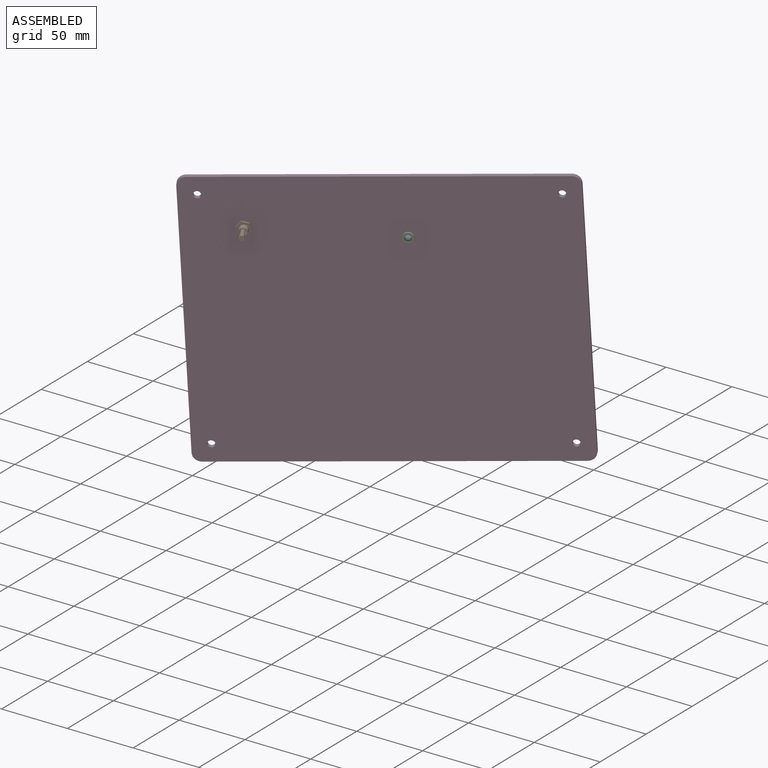
[diagram: assembled view]
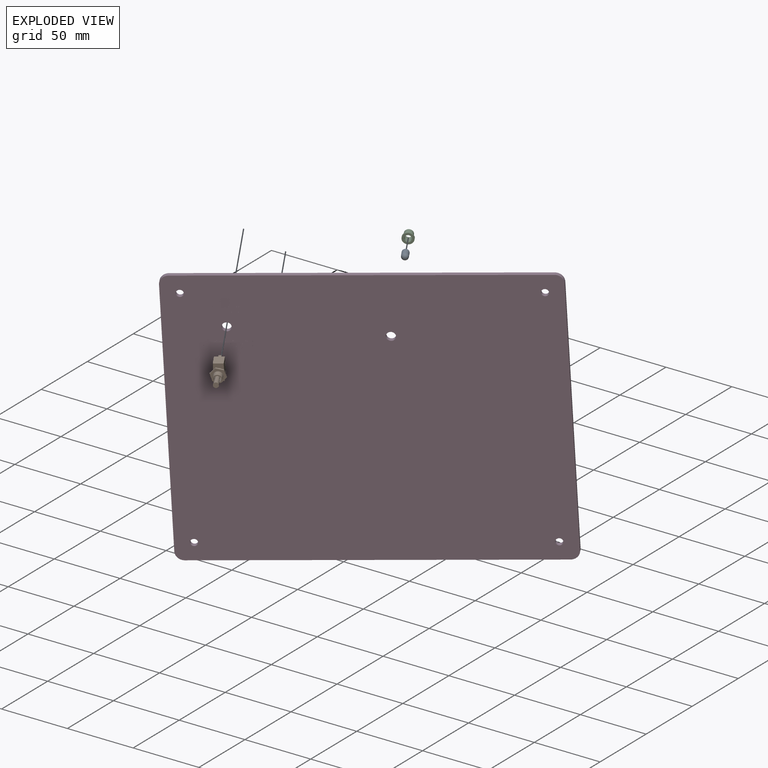
[diagram: exploded view]
GUIDED TOUR — MATED ASSEMBLY (Onshape document 11cc76b6e873f6705a067097, AutoMate assembly 11cc76b6e873f6705a067097_0fe16303fa36b0447fc38cfa_870a5784bba27549d0784133_default)

This assembly has 4 components, labeled P0..P3 below (a component is one placed occurrence of a part; the same part can appear more than once), held together by 3 mates. A mate is a constraint between two components; its type names the relative motion it leaves free:
  FASTENED — locks the two components together rigidly (no relative motion).
Axis/direction vectors are unit vectors and 'through' points are millimeter coordinates, both in the assembly's world frame.

MATES
  1. FASTENED "Fastened 1": P1 <-> P3, direction (-0.500, 0.863, 0.075) through (-8.96, -2.70, 73.06) mm
  2. FASTENED "Fastened 2": P2 <-> P0, direction (-0.500, 0.863, 0.075) through (77.27, 53.36, 70.91) mm
  3. FASTENED "Fastened 3": P2 <-> P3, direction (0.500, -0.863, -0.075) through (79.81, 48.97, 70.53) mm

ASSEMBLY ORDER
  1. P3 — the base component [order verified]
  2. P1 [order verified]
  3. P0 [order verified]
  4. P2 [order verified]
(P1, P2 verified with a relaxed clearance tolerance: the source model stores slight part interference there.)
Order-tag legend:
  [order verified] — this step's position reverses a verified removal order: the component was checked to insert without passing through the ones already placed.

Of the 4 components, 4 carry the full construction recipe — the FeatureScript program that regenerates the part's solid from scratch; the rest are supplied as boundary geometry only.
Each toured component is shown spotlighted twice — in the assembled view, then in the exploded view, where a leader line traces a displaced component back to its assembled socket (saturated green if recipe-attached, orange if geometry-only; every other component desaturated gray) — followed by its recipe or geometry summary and the mates that hold it.
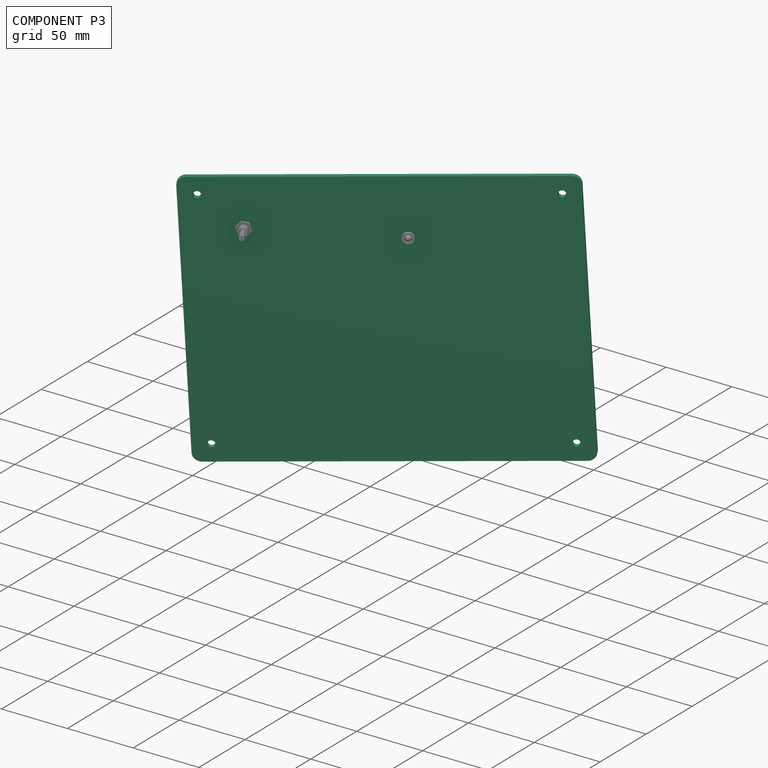
[diagram: component P3 — assembled]
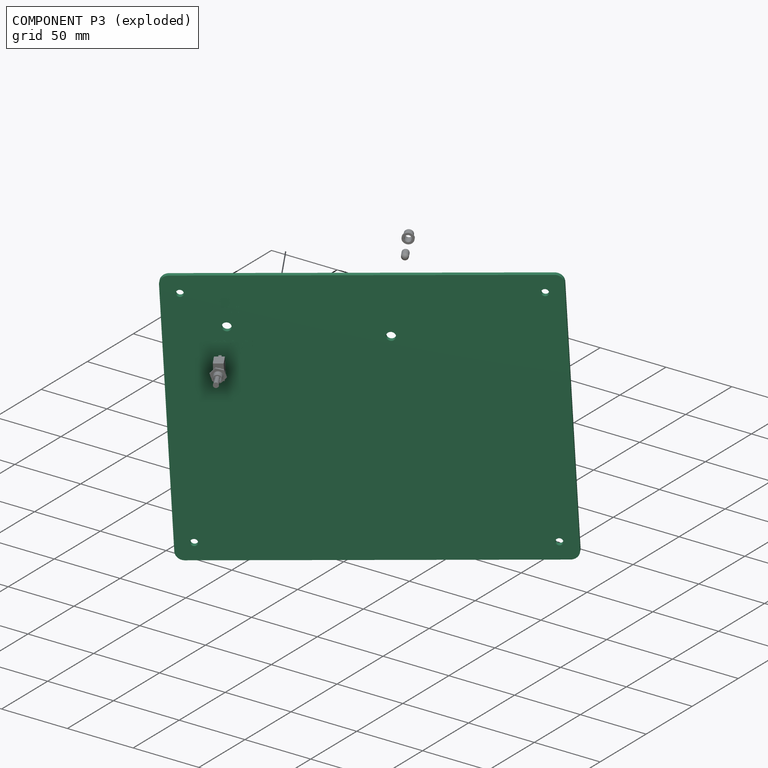
[diagram: component P3 — exploded]
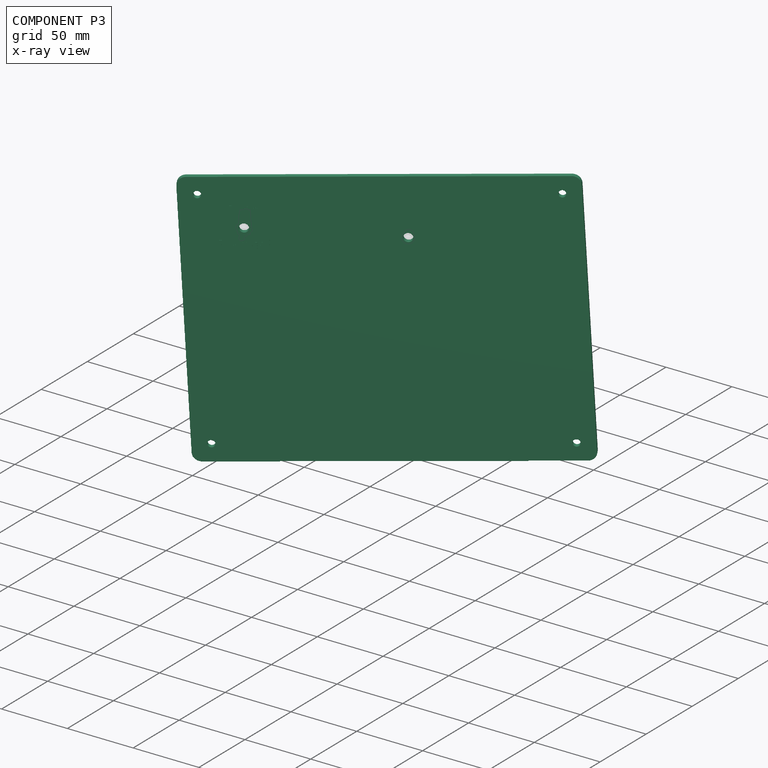
[diagram: component P3 — x-ray view]
COMPONENT P3 — recipe-attached (CADFS 00283833, mesh-verified: the recipe's output STEP matches this component's geometry to below the mesh-comparison resolution (tessellation chordal tolerance ~0.488 mm)).
Held by: FASTENED mate "Fastened 1" to P1; FASTENED mate "Fastened 3" to P2.
Construction recipe (FeatureScript — the CAD program that rebuilds this solid; sketch coordinates are in the units given by the * unit suffixes, e.g. mm):

FeatureScript 1511;
import(path : "onshape/std/geometry.fs", version : "1511.0");
import(path : "onshape/std/common.fs", version : "1511.0");
const mm = millimeter;
const VERTEX = EntityType.VERTEX;
const EDGE = EntityType.EDGE;
const FACE = EntityType.FACE;
const BODY = EntityType.BODY;
function v(x, y){return vector(x, y);}
function OD(order){return orderDisambiguation(order);}
function OSD(set){return originalSetDisambiguation(set);}
function TD(topology){return topologyDisambiguation(topology);}
function TDD(query){return trueDependencyDisambiguation(query);}
function sQuery(a, b, c) {return sketchEntityQuery(a, b, c);}

annotation { "Feature Type Name" : "Feature", "Feature Type Description" : "" }
export const myFeature = defineFeature(function(context is Context, id is Id, definition is map)
    precondition{}
    {
        {
            var Q0;
            Q0=qCreatedBy(makeId("Front.planeOp"),FACE);
            var sketch = newSketch(context, id + "F0", { "sketchPlane" : qUnion([Q0])});
            skLineSegment(sketch, "E0.bottom", {"start": v(127, 101.6) * mm, "end": v(-127, 101.6) * mm});
            skLineSegment(sketch, "E0.top", {"start": v(127, -101.6) * mm, "end": v(-127, -101.6) * mm});
            skLineSegment(sketch, "E0.left", {"start": v(127, 101.6) * mm, "end": v(127, -101.6) * mm});
            skLineSegment(sketch, "E0.right", {"start": v(-127, 101.6) * mm, "end": v(-127, -101.6) * mm});
            skPoint(sketch, "E0.middle", {"position": v(0, 0) * mm});
            skLineSegment(sketch, "E1.bottom", {"start": v(-114.3, 88.9) * mm, "end": v(114.3, 88.9) * mm, "construction": true});
            skLineSegment(sketch, "E1.top", {"start": v(-114.3, -88.9) * mm, "end": v(114.3, -88.9) * mm, "construction": true});
            skLineSegment(sketch, "E1.left", {"start": v(-114.3, 88.9) * mm, "end": v(-114.3, -88.9) * mm, "construction": true});
            skLineSegment(sketch, "E1.right", {"start": v(114.3, 88.9) * mm, "end": v(114.3, -88.9) * mm, "construction": true});
            skCircle(sketch, "E2", {"center": v(-114.3, 88.9) * mm, "radius": 2.54 * mm});
            skCircle(sketch, "E3", {"center": v(114.3, 88.9) * mm, "radius": 2.54 * mm});
            skCircle(sketch, "E4", {"center": v(114.3, -88.9) * mm, "radius": 2.54 * mm});
            skCircle(sketch, "E5", {"center": v(-114.3, -88.9) * mm, "radius": 2.54 * mm});
            skSolve(sketch);
        }
        {
            var Q0;
            Q0 = qSketchRegion(id + "F0", true);
            extrude(context, id + "F1", {"entities" : qUnion([Q0]), "depth" : 3.17 * mm});
        }
        {
            var Q0;
            Q0=makeQuery(id+"F1.opExtrude","SWEPT_EDGE",EDGE,{"disambiguationData":[OSD([sQuery(id+"F0.wireOp",EDGE,"E0.top"),sQuery(id+"F0.wireOp",EDGE,"E0.right")])]});
            var Q1;
            Q1=makeQuery(id+"F1.opExtrude","SWEPT_EDGE",EDGE,{"disambiguationData":[OSD([sQuery(id+"F0.wireOp",EDGE,"E0.top"),sQuery(id+"F0.wireOp",EDGE,"E0.left")])]});
            var Q2;
            Q2=makeQuery(id+"F1.opExtrude","SWEPT_EDGE",EDGE,{"disambiguationData":[OSD([sQuery(id+"F0.wireOp",EDGE,"E0.bottom"),sQuery(id+"F0.wireOp",EDGE,"E0.left")])]});
            var Q3;
            Q3=makeQuery(id+"F1.opExtrude","SWEPT_EDGE",EDGE,{"disambiguationData":[OSD([sQuery(id+"F0.wireOp",EDGE,"E0.bottom"),sQuery(id+"F0.wireOp",EDGE,"E0.right")])]});
            fillet(context, id + "F2", {"entities" : qUnion([Q0, Q1, Q2, Q3]), "radius" : 6.35 * mm, "tangentPropagation" : true, "allowEdgeOverflow" : false});
        }
        {
            var Q0;
            Q0=makeQuery(id+"F1.opExtrude","CAP_FACE",FACE,{"disambiguationData":[OSD([sQuery(id+"F0.wireOp",EDGE,"E0.bottom"),sQuery(id+"F0.wireOp",EDGE,"E0.top"),sQuery(id+"F0.wireOp",EDGE,"E0.left"),sQuery(id+"F0.wireOp",EDGE,"E0.right"),sQuery(id+"F0.wireOp",EDGE,"E2"),sQuery(id+"F0.wireOp",EDGE,"E3"),sQuery(id+"F0.wireOp",EDGE,"E4"),sQuery(id+"F0.wireOp",EDGE,"E5")])],"isStart":false});
            var sketch = newSketch(context, id + "F3", { "sketchPlane" : qUnion([Q0])});
            skCircle(sketch, "E6", {"center": v(-86.18, 64.96) * mm, "radius": 3.18 * mm});
            skCircle(sketch, "E7", {"center": v(16.32, 57.93) * mm, "radius": 3.18 * mm});
            skSolve(sketch);
        }
        {
            var Q0;
            Q0 = qSketchRegion(id + "F3", true);
            extrude(context, id + "F4", {"entities" : qUnion([Q0]), "operationType" : NewBodyOperationType.REMOVE, "endBound" : BoundingType.UP_TO_NEXT, "oppositeDirection" : true, "depth" : 25.4 * mm});
        }
        {
            var Q0;
            Q0=makeQuery(id+"F1.opExtrude","CAP_FACE",FACE,{"disambiguationData":[OSD([sQuery(id+"F0.wireOp",EDGE,"E0.bottom"),sQuery(id+"F0.wireOp",EDGE,"E0.top"),sQuery(id+"F0.wireOp",EDGE,"E0.left"),sQuery(id+"F0.wireOp",EDGE,"E0.right"),sQuery(id+"F0.wireOp",EDGE,"E2"),sQuery(id+"F0.wireOp",EDGE,"E3"),sQuery(id+"F0.wireOp",EDGE,"E4"),sQuery(id+"F0.wireOp",EDGE,"E5")])],"isStart":false});
            var sketch = newSketch(context, id + "F5", { "sketchPlane" : qUnion([Q0])});
            skText(sketch, "E8", { "text": "Auto", "fontName": "OpenSans-Bold.ttf"});
            skText(sketch, "E9", { "text": "Manual", "fontName": "OpenSans-Bold.ttf"});
            const initialGuessF5  = {"E8": [-0.09705, 0.07449, 1, 0, 0.00635], "E9": [-0.10304, 0.05008, 1, 0, 0.00635]};
            skSetInitialGuess(sketch, initialGuessF5);
            skSolve(sketch);
        }
        {
            var Q0;
            Q0 = qSketchRegion(id + "F5", true);
            extrude(context, id + "F6", {"entities" : qUnion([Q0]), "operationType" : NewBodyOperationType.ADD, "depth" : 0.03 * mm});
        }
    });
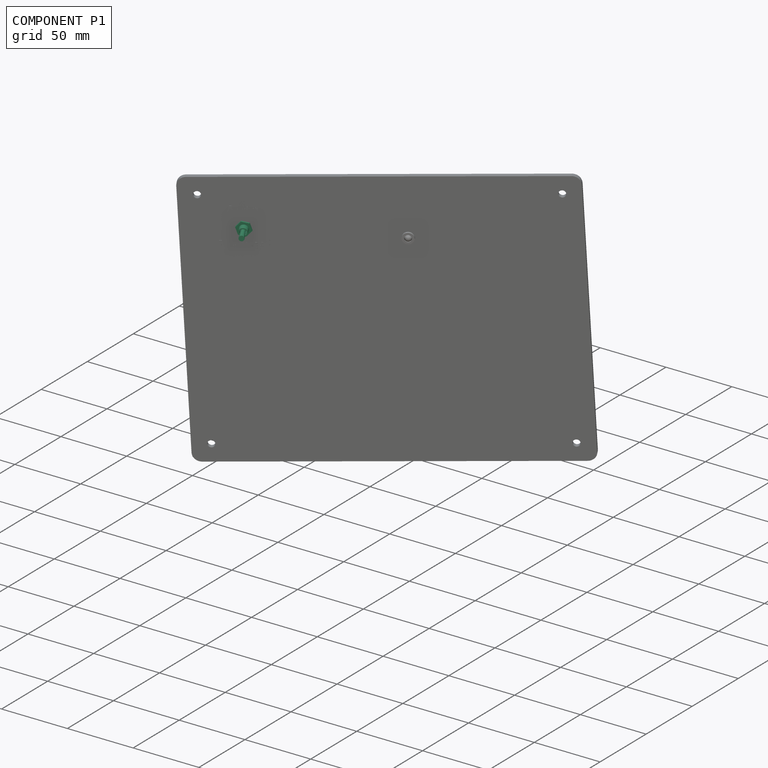
[diagram: component P1 — assembled]
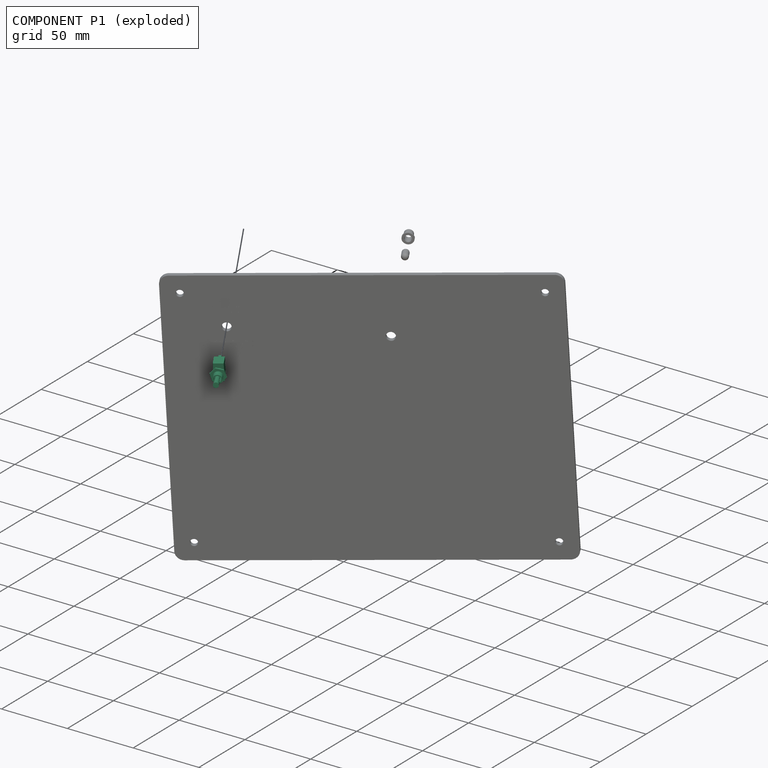
[diagram: component P1 — exploded]
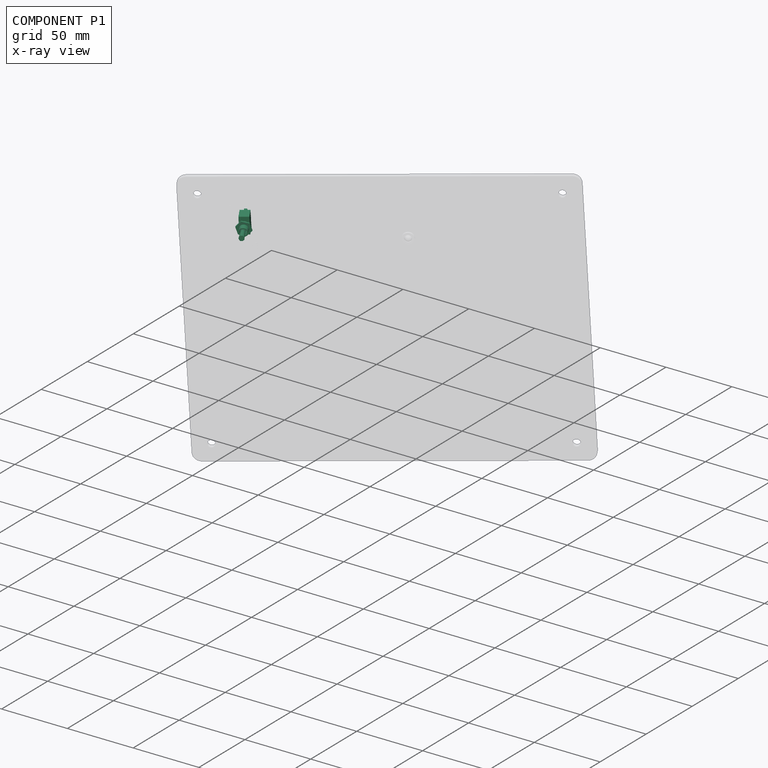
[diagram: component P1 — x-ray view]
COMPONENT P1 — recipe-attached (CADFS 00283834, mesh-verified: the recipe's output STEP matches this component's geometry to below the mesh-comparison resolution (tessellation chordal tolerance ~0.0547 mm)).
Held by: FASTENED mate "Fastened 1" to P3.
Construction recipe (FeatureScript — the CAD program that rebuilds this solid; sketch coordinates are in the units given by the * unit suffixes, e.g. mm):

FeatureScript 1511;
import(path : "onshape/std/geometry.fs", version : "1511.0");
import(path : "onshape/std/common.fs", version : "1511.0");
const mm = millimeter;
const VERTEX = EntityType.VERTEX;
const EDGE = EntityType.EDGE;
const FACE = EntityType.FACE;
const BODY = EntityType.BODY;
function v(x, y){return vector(x, y);}
function OD(order){return orderDisambiguation(order);}
function OSD(set){return originalSetDisambiguation(set);}
function TD(topology){return topologyDisambiguation(topology);}
function TDD(query){return trueDependencyDisambiguation(query);}
function sQuery(a, b, c) {return sketchEntityQuery(a, b, c);}

annotation { "Feature Type Name" : "Feature", "Feature Type Description" : "" }
export const myFeature = defineFeature(function(context is Context, id is Id, definition is map)
    precondition{}
    {
        {
            var Q0;
            Q0=qCreatedBy(makeId("Top.planeOp"),FACE);
            var sketch = newSketch(context, id + "F0", { "sketchPlane" : qUnion([Q0])});
            skCircle(sketch, "E0", {"center": v(0, 0) * mm, "radius": 3.18 * mm});
            skCircle(sketch, "E1", {"center": v(0, 0) * mm, "radius": 2.37 * mm});
            skSolve(sketch);
        }
        {
            var Q0;
            Q0=makeQuery(id+"F0.imprint","IMPRINT",FACE,{"disambiguationData":[TD([[makeQuery(id+"F0.imprint","IMPRINT",EDGE,{"derivedFrom":sQuery(id+"F0.wireOp",EDGE,"E0")}),1.0]])]});
            extrude(context, id + "F1", {"entities" : qUnion([Q0]), "depth" : 8.9 * mm});
        }
        {
            var Q0;
            Q0=makeQuery(id+"F1.opExtrude","CAP_FACE",FACE,{"disambiguationData":[OSD([sQuery(id+"F0.wireOp",EDGE,"E0"),sQuery(id+"F0.wireOp",EDGE,"E1")])],"isStart":true});
            var sketch = newSketch(context, id + "F2", { "sketchPlane" : qUnion([Q0])});
            skLineSegment(sketch, "E2.bottom", {"start": v(6.35, -3.43) * mm, "end": v(-6.35, -3.43) * mm});
            skLineSegment(sketch, "E2.top", {"start": v(6.35, 3.43) * mm, "end": v(-6.35, 3.43) * mm});
            skLineSegment(sketch, "E2.left", {"start": v(6.35, -3.43) * mm, "end": v(6.35, 3.43) * mm});
            skLineSegment(sketch, "E2.right", {"start": v(-6.35, -3.43) * mm, "end": v(-6.35, 3.43) * mm});
            skPoint(sketch, "E2.middle", {"position": v(0, 0) * mm});
            skSolve(sketch);
        }
        {
            var Q0;
            Q0 = qSketchRegion(id + "F2", true);
            extrude(context, id + "F3", {"entities" : qUnion([Q0]), "operationType" : NewBodyOperationType.ADD, "depth" : 8.9 * mm});
        }
        {
            var Q0;
            Q0=makeQuery(id+"F3.opExtrude","CAP_FACE",FACE,{"disambiguationData":[OSD([sQuery(id+"F2.wireOp",EDGE,"E2.bottom"),sQuery(id+"F2.wireOp",EDGE,"E2.top"),sQuery(id+"F2.wireOp",EDGE,"E2.left"),sQuery(id+"F2.wireOp",EDGE,"E2.right")])],"isStart":false});
            var sketch = newSketch(context, id + "F4", { "sketchPlane" : qUnion([Q0])});
            skLineSegment(sketch, "E3.bottom", {"start": v(-4.32, 1.02) * mm, "end": v(-5.08, 1.02) * mm});
            skLineSegment(sketch, "E3.top", {"start": v(-4.32, -1.02) * mm, "end": v(-5.08, -1.02) * mm});
            skLineSegment(sketch, "E3.left", {"start": v(-4.32, 1.02) * mm, "end": v(-4.32, -1.02) * mm});
            skLineSegment(sketch, "E3.right", {"start": v(-5.08, 1.02) * mm, "end": v(-5.08, -1.02) * mm});
            skPoint(sketch, "E3.middle", {"position": v(0, 0) * mm});
            skPoint(sketch, "E3.middle.positionSnap0", {"position": v(-6.35, 0) * mm});
            skPoint(sketch, "E3.middle.positionSnap1", {"position": v(0, 3.43) * mm});
            skPoint(sketch, "E3.centerSnap0", {"position": v(-6.35, 0) * mm});
            skPoint(sketch, "E3.centerSnap1", {"position": v(0, 3.43) * mm});
            skLineSegment(sketch, "E4.1.0.0", {"start": v(-0.38, 1.02) * mm, "end": v(-0.38, -1.02) * mm});
            skLineSegment(sketch, "E4.1.0.1", {"start": v(0.38, 1.02) * mm, "end": v(0.38, -1.02) * mm});
            skLineSegment(sketch, "E4.1.0.2", {"start": v(0.38, -1.02) * mm, "end": v(-0.38, -1.02) * mm});
            skLineSegment(sketch, "E4.1.0.3", {"start": v(0.38, 1.02) * mm, "end": v(-0.38, 1.02) * mm});
            skPoint(sketch, "E4.1.0.4", {"position": v(4.7, 0) * mm});
            skLineSegment(sketch, "E4.2.0.0", {"start": v(4.32, 1.02) * mm, "end": v(4.32, -1.02) * mm});
            skLineSegment(sketch, "E4.2.0.1", {"start": v(5.08, 1.02) * mm, "end": v(5.08, -1.02) * mm});
            skLineSegment(sketch, "E4.2.0.2", {"start": v(5.08, -1.02) * mm, "end": v(4.32, -1.02) * mm});
            skLineSegment(sketch, "E4.2.0.3", {"start": v(5.08, 1.02) * mm, "end": v(4.32, 1.02) * mm});
            skPoint(sketch, "E4.2.0.4", {"position": v(9.4, 0) * mm});
            skLineSegment(sketch, "E4.direction1", {"start": v(-5.08, -1.02) * mm, "end": v(-0.38, -1.02) * mm, "construction": true});
            skLineSegment(sketch, "E5", {"start": v(0, 3.43) * mm, "end": v(0, 1.02) * mm, "construction": true});
            skLineSegment(sketch, "E6", {"start": v(0, -3.43) * mm, "end": v(0, -1.02) * mm, "construction": true});
            skSolve(sketch);
        }
        {
            var Q0;
            Q0 = qSketchRegion(id + "F4", true);
            extrude(context, id + "F5", {"entities" : qUnion([Q0]), "operationType" : NewBodyOperationType.ADD, "depth" : 3.94 * mm});
        }
        {
            var Q0;
            {var subQ0=sQuery(id+"F2.wireOp",EDGE,"E2.left");var subQ1=sQuery(id+"F2.wireOp",EDGE,"E2.top");var subQ2=sQuery(id+"F2.wireOp",EDGE,"E2.bottom");var subQ3=sQuery(id+"F2.wireOp",EDGE,"E2.right");Q0=makeQuery(id+"F3.boolean.opBoolean","SPLIT",FACE,{"disambiguationData":[TD([makeQuery(id+"F1.opExtrude","SWEPT_FACE",FACE,{"disambiguationData":[OSD([sQuery(id+"F0.wireOp",EDGE,"E0")])]})])],"derivedFrom":makeQuery(id+"F3.opExtrude","CAP_FACE",FACE,{"disambiguationData":[OSD([subQ2,subQ1,subQ0,subQ3])],"isStart":true})});}
            cPlane(context, id + "F6", {"entities" : qUnion([Q0]), "cplaneType" : CPlaneType.OFFSET, "offset" : 3.17 * mm, "width" : 152.4 * mm, "height" : 152.4 * mm});
        }
        {
            var Q0;
            Q0=qCreatedBy(id+"F6.planeOp",FACE);
            var sketch = newSketch(context, id + "F7", { "sketchPlane" : qUnion([Q0])});
            skCircle(sketch, "E7.cCircle", {"center": v(0, 0) * mm, "radius": 4.76 * mm, "construction": true});
            skLineSegment(sketch, "E7.0", {"start": v(-1.37, -5.33) * mm, "end": v(-5.3, -1.48) * mm});
            skLineSegment(sketch, "E7.1", {"start": v(-5.3, -1.48) * mm, "end": v(-3.93, 3.85) * mm});
            skLineSegment(sketch, "E7.2", {"start": v(-3.93, 3.85) * mm, "end": v(1.37, 5.33) * mm});
            skLineSegment(sketch, "E7.3", {"start": v(1.37, 5.33) * mm, "end": v(5.3, 1.48) * mm});
            skLineSegment(sketch, "E7.4", {"start": v(5.3, 1.48) * mm, "end": v(3.93, -3.85) * mm});
            skLineSegment(sketch, "E7.5", {"start": v(3.93, -3.85) * mm, "end": v(-1.37, -5.33) * mm});
            skPoint(sketch, "E7.0.midPoint", {"position": v(-3.33, -3.4) * mm});
            skCircle(sketch, "E8", {"center": v(0, 0) * mm, "radius": 3.18 * mm});
            skSolve(sketch);
        }
        {
            var Q0;
            Q0 = qSketchRegion(id + "F7", true);
            extrude(context, id + "F8", {"entities" : qUnion([Q0]), "operationType" : NewBodyOperationType.ADD, "depth" : 1.17 * mm});
        }
        {
            var Q0;
            {var subQ0=sQuery(id+"F2.wireOp",EDGE,"E2.left");var subQ1=sQuery(id+"F2.wireOp",EDGE,"E2.top");var subQ2=sQuery(id+"F2.wireOp",EDGE,"E2.bottom");var subQ3=sQuery(id+"F2.wireOp",EDGE,"E2.right");Q0=makeQuery(id+"F3.boolean.opBoolean","SPLIT",FACE,{"disambiguationData":[TD([makeQuery(id+"F1.opExtrude","SWEPT_FACE",FACE,{"disambiguationData":[OSD([sQuery(id+"F0.wireOp",EDGE,"E0")])]})])],"derivedFrom":makeQuery(id+"F3.opExtrude","CAP_FACE",FACE,{"disambiguationData":[OSD([subQ2,subQ1,subQ0,subQ3])],"isStart":true})});}
            var sketch = newSketch(context, id + "F9", { "sketchPlane" : qUnion([Q0])});
            skLineSegment(sketch, "E9", {"start": v(0, 3.43) * mm, "end": v(0, -3.43) * mm, "construction": true});
            skSolve(sketch);
        }
        {
            var Q0;
            Q0=sQuery(id+"F9.wireOp",EDGE,"E9");
            cPlane(context, id + "F10", {"entities" : qUnion([Q0]), "cplaneType" : CPlaneType.LINE_ANGLE, "offset" : 25.4 * mm, "angle" : 5 * degree, "oppositeDirection" : true, "width" : 152.4 * mm, "height" : 152.4 * mm});
        }
        {
            var Q0;
            Q0=qCreatedBy(id+"F10.planeOp",FACE);
            var sketch = newSketch(context, id + "F11", { "sketchPlane" : qUnion([Q0])});
            skCircle(sketch, "E10", {"center": v(0, 0) * mm, "radius": 1.22 * mm});
            skSolve(sketch);
        }
        {
            var Q0;
            Q0 = qSketchRegion(id + "F11", true);
            extrude(context, id + "F12", {"entities" : qUnion([Q0]), "operationType" : NewBodyOperationType.ADD, "oppositeDirection" : true, "depth" : 19.56 * mm, "hasDraft" : true, "draftAngle" : 2 * degree});
        }
    });
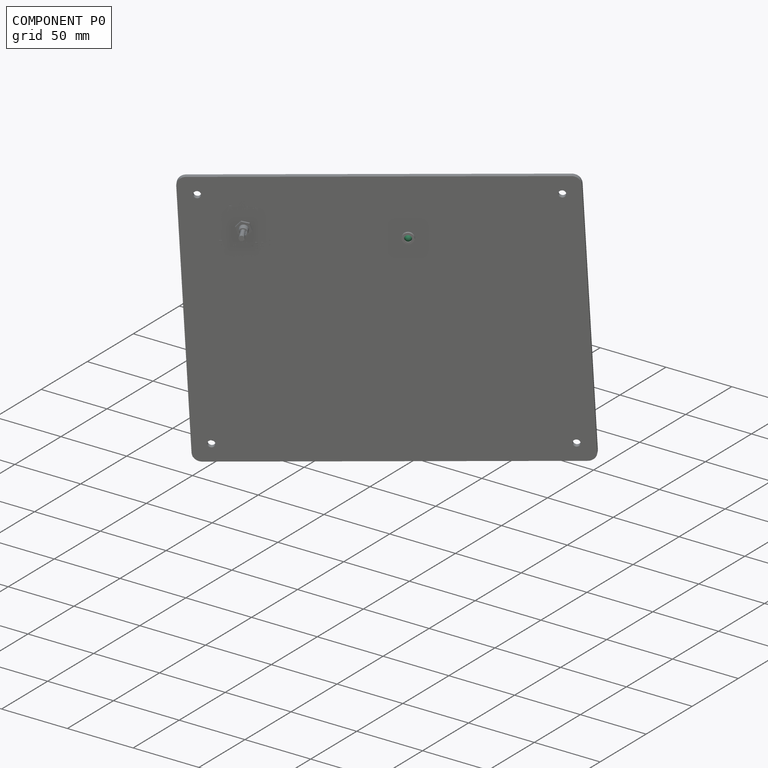
[diagram: component P0 — assembled]
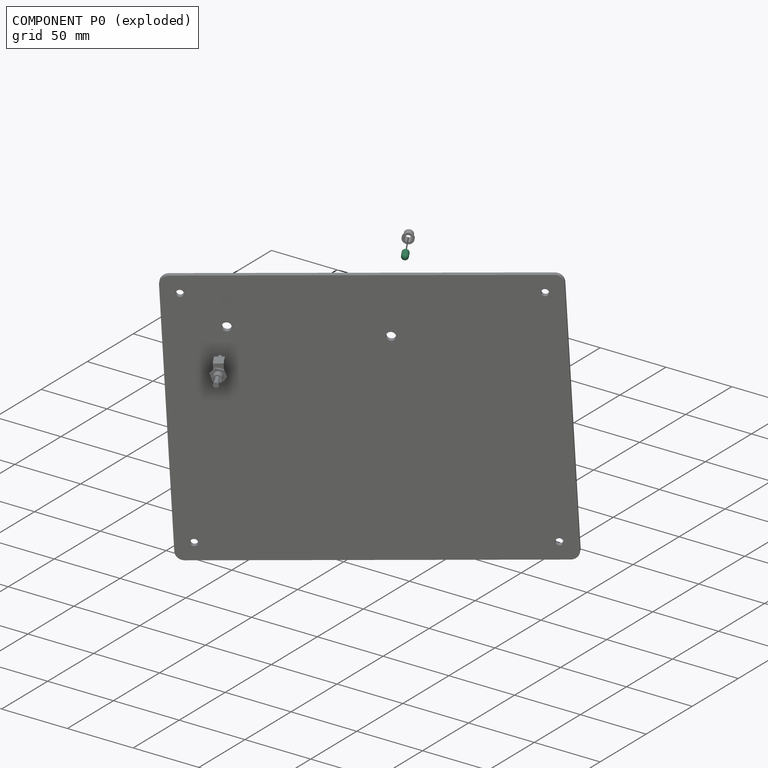
[diagram: component P0 — exploded]
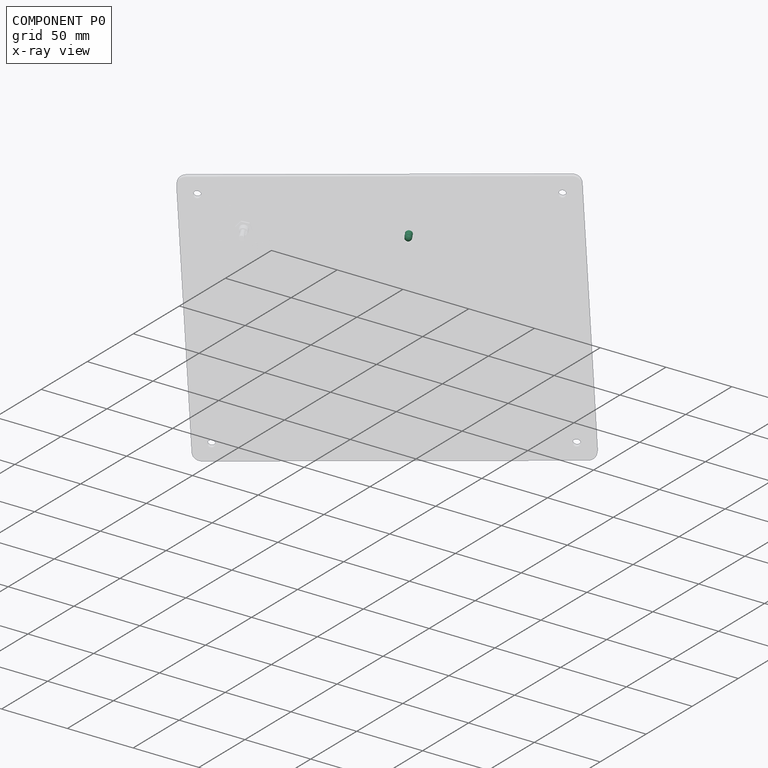
[diagram: component P0 — x-ray view]
COMPONENT P0 — recipe-attached (CADFS 00283836, mesh-verified: the recipe's output STEP matches this component's geometry to below the mesh-comparison resolution (tessellation chordal tolerance ~0.0155 mm)).
Held by: FASTENED mate "Fastened 2" to P2.
Construction recipe (FeatureScript — the CAD program that rebuilds this solid; sketch coordinates are in the units given by the * unit suffixes, e.g. mm):

FeatureScript 1511;
import(path : "onshape/std/geometry.fs", version : "1511.0");
import(path : "onshape/std/common.fs", version : "1511.0");
const mm = millimeter;
const VERTEX = EntityType.VERTEX;
const EDGE = EntityType.EDGE;
const FACE = EntityType.FACE;
const BODY = EntityType.BODY;
function v(x, y){return vector(x, y);}
function OD(order){return orderDisambiguation(order);}
function OSD(set){return originalSetDisambiguation(set);}
function TD(topology){return topologyDisambiguation(topology);}
function TDD(query){return trueDependencyDisambiguation(query);}
function sQuery(a, b, c) {return sketchEntityQuery(a, b, c);}

annotation { "Feature Type Name" : "Feature", "Feature Type Description" : "" }
export const myFeature = defineFeature(function(context is Context, id is Id, definition is map)
    precondition{}
    {
        {
            var Q0;
            Q0=qCreatedBy(makeId("Front.planeOp"),FACE);
            var sketch = newSketch(context, id + "F0", { "sketchPlane" : qUnion([Q0])});
            skLineSegment(sketch, "E0", {"start": v(0, 0) * mm, "end": v(-2.5, 0) * mm});
            skLineSegment(sketch, "E1", {"start": v(-2.5, 0) * mm, "end": v(-2.5, 5.08) * mm});
            skArc(sketch, "E2", {"start": v(-2.5, 5.08) * mm, "mid": v(-1.77, 6.85) * mm, "end": v(0, 7.58) * mm});
            skLineSegment(sketch, "E3", {"start": v(0, 7.58) * mm, "end": v(0, 0) * mm});
            skSolve(sketch);
        }
        {
            var Q0;
            Q0=makeQuery(id+"F0.imprint","IMPRINT",FACE,{"disambiguationData":[TD([[makeQuery(id+"F0.imprint","IMPRINT",EDGE,{"derivedFrom":sQuery(id+"F0.wireOp",EDGE,"E0")}),-1.0]])]});
            var Q1;
            Q1=sQuery(id+"F0.wireOp",EDGE,"E3");
            revolve(context, id + "F1", {"entities" : qUnion([Q0]), "axis" : qUnion([Q1]), "revolveType" : RevolveType.FULL});
        }
    });
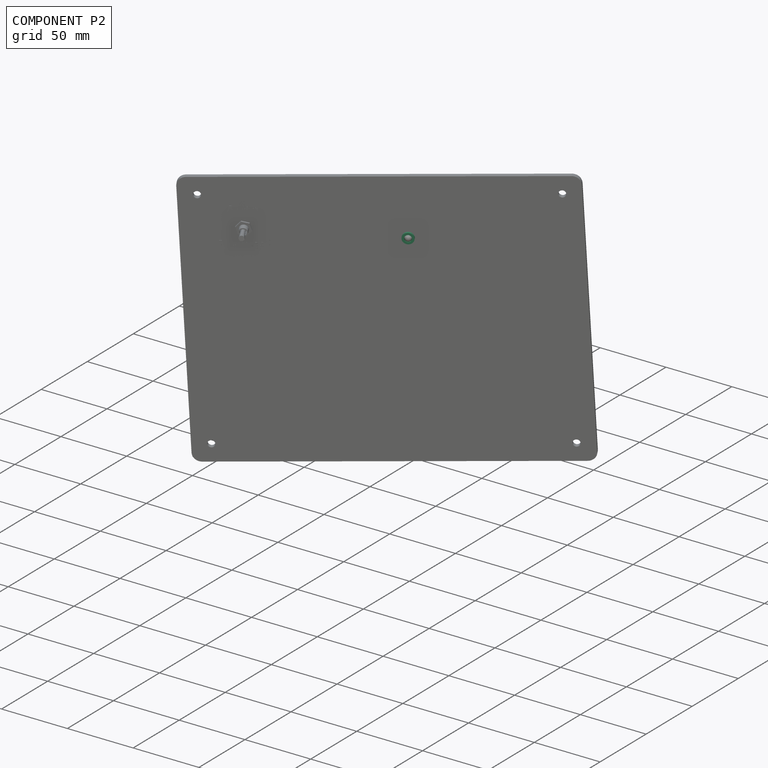
[diagram: component P2 — assembled]
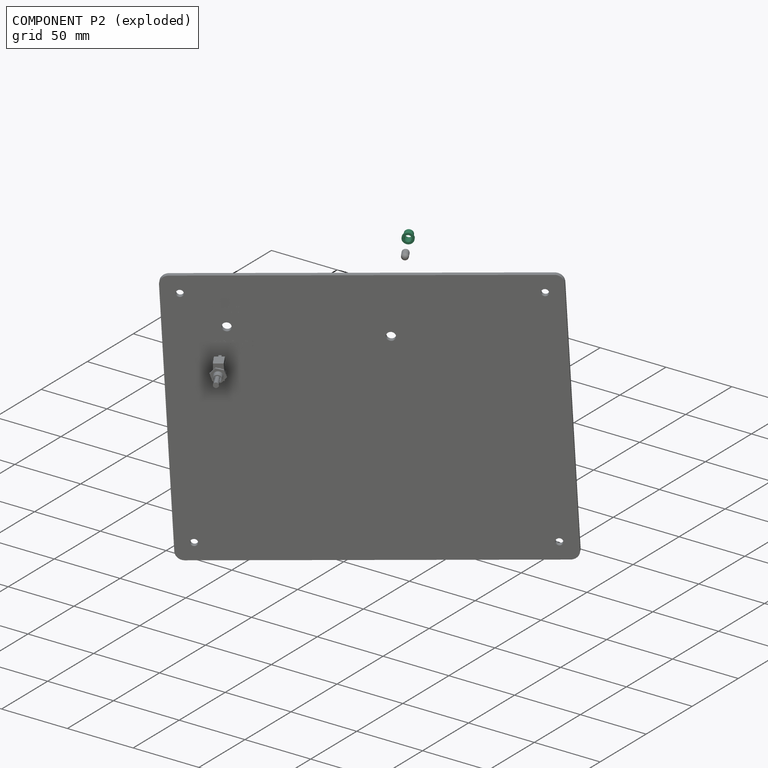
[diagram: component P2 — exploded]
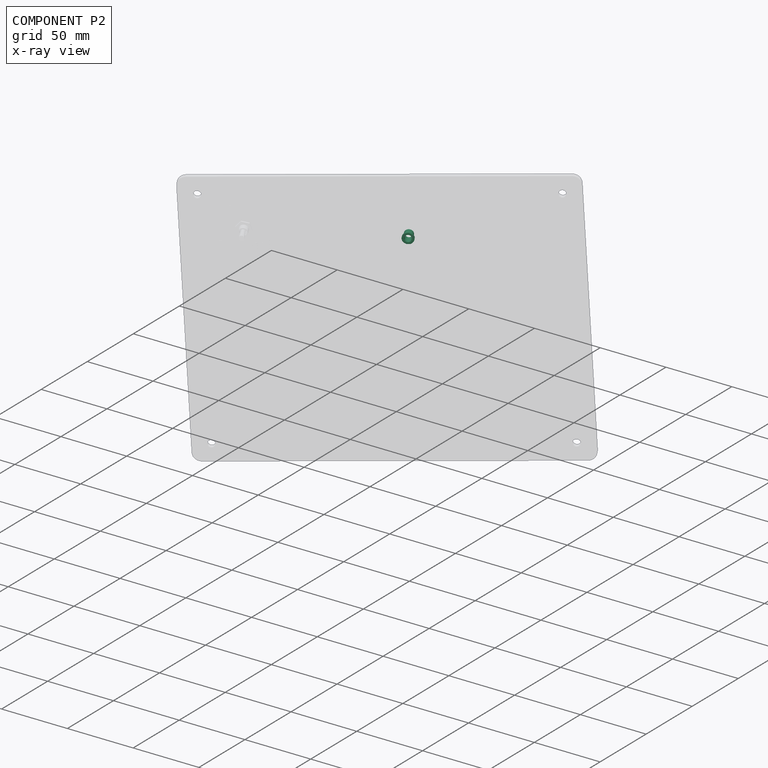
[diagram: component P2 — x-ray view]
COMPONENT P2 — recipe-attached (CADFS 00283835, mesh-verified: the recipe's output STEP matches this component's geometry to below the mesh-comparison resolution (tessellation chordal tolerance ~0.0199 mm)).
Held by: FASTENED mate "Fastened 2" to P0; FASTENED mate "Fastened 3" to P3.
Construction recipe (FeatureScript — the CAD program that rebuilds this solid; sketch coordinates are in the units given by the * unit suffixes, e.g. mm):

FeatureScript 1511;
import(path : "onshape/std/geometry.fs", version : "1511.0");
import(path : "onshape/std/common.fs", version : "1511.0");
const mm = millimeter;
const VERTEX = EntityType.VERTEX;
const EDGE = EntityType.EDGE;
const FACE = EntityType.FACE;
const BODY = EntityType.BODY;
function v(x, y){return vector(x, y);}
function OD(order){return orderDisambiguation(order);}
function OSD(set){return originalSetDisambiguation(set);}
function TD(topology){return topologyDisambiguation(topology);}
function TDD(query){return trueDependencyDisambiguation(query);}
function sQuery(a, b, c) {return sketchEntityQuery(a, b, c);}

annotation { "Feature Type Name" : "Feature", "Feature Type Description" : "" }
export const myFeature = defineFeature(function(context is Context, id is Id, definition is map)
    precondition{}
    {
        {
            var Q0;
            Q0=qCreatedBy(makeId("Top.planeOp"),FACE);
            var sketch = newSketch(context, id + "F0", { "sketchPlane" : qUnion([Q0])});
            skCircle(sketch, "E0", {"center": v(0, 0) * mm, "radius": 2.5 * mm});
            skCircle(sketch, "E1", {"center": v(0, 0) * mm, "radius": 4.11 * mm});
            skSolve(sketch);
        }
        {
            var Q0;
            Q0 = qSketchRegion(id + "F0", true);
            extrude(context, id + "F1", {"entities" : qUnion([Q0]), "depth" : 1.27 * mm});
        }
        {
            var Q0;
            Q0=makeQuery(id+"F1.opExtrude","CAP_FACE",FACE,{"disambiguationData":[OSD([sQuery(id+"F0.wireOp",EDGE,"E0"),sQuery(id+"F0.wireOp",EDGE,"E1")])],"isStart":true});
            var sketch = newSketch(context, id + "F2", { "sketchPlane" : qUnion([Q0])});
            skCircle(sketch, "E2", {"center": v(0, 0) * mm, "radius": 2.5 * mm});
            skCircle(sketch, "E3", {"center": v(0, 0) * mm, "radius": 3.21 * mm});
            skSolve(sketch);
        }
        {
            var Q0;
            Q0 = qSketchRegion(id + "F2", true);
            extrude(context, id + "F3", {"entities" : qUnion([Q0]), "operationType" : NewBodyOperationType.ADD, "depth" : 5.08 * mm});
        }
    });
PROVENANCE & LICENSES
Assembly (occurrences, transforms, mates, per-part STEP geometry): AutoMate dataset, Zenodo record 7776208, CC0.
Construction recipes: CADFS (HuggingFace VladPyatov/CADFS, CC-BY-4.0, layered over the ABC dataset), FeatureScript reconstruction programs keyed by ABC model id.
Join: ABC meta listings map ABC model id -> Onshape documentId; within a shared document, parts are matched by geometric signature (bounding-box dims + volume at 0.1% relative tolerance, exact B-rep face/solid counts).
Verification: 4 of this assembly's 4 components carry a recipe attachment, and every attachment is mesh-verified: the CADFS STEP and the AutoMate member STEP were compared as meshes in their shared local frame (symmetric sampled-point-to-mesh distance); worst across the 4 attachments: below the mesh-comparison resolution (tessellation chordal tolerance ~0.488 mm) on a 325 mm part.
Renders: orthographic iso camera (az 35 / el 25); the floor grid conveys scale (grid pitch printed in each image; no ruler). In the exploded view each component is displaced by its stored offset vector: the offsets alone carry the explosion direction (mate normal/axis signs are not orientation cues and do not encode it), and separation distances are assigned per mate-chain, not proportionally to assembly-order depth.
